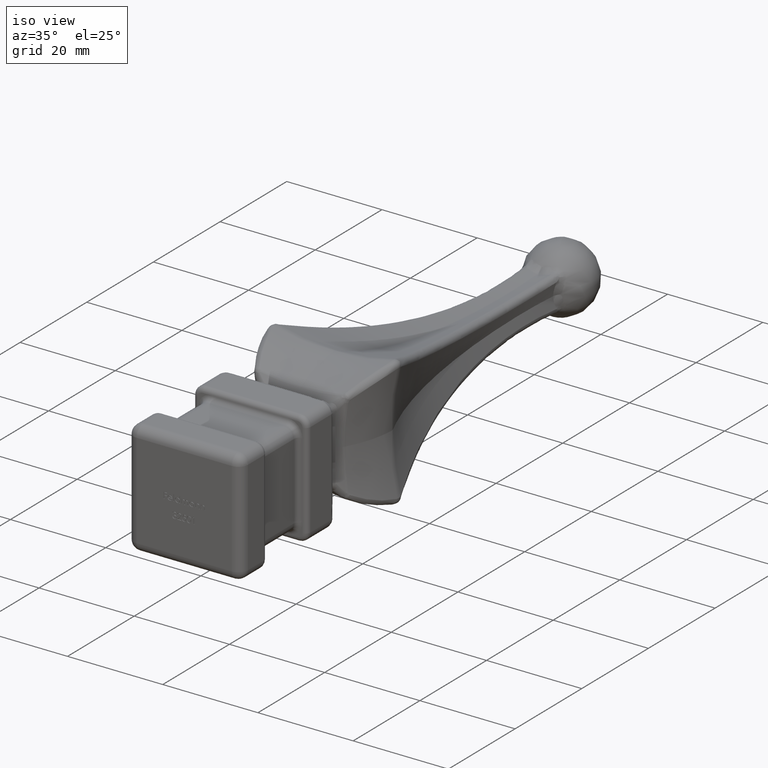
[diagram: clean part render]
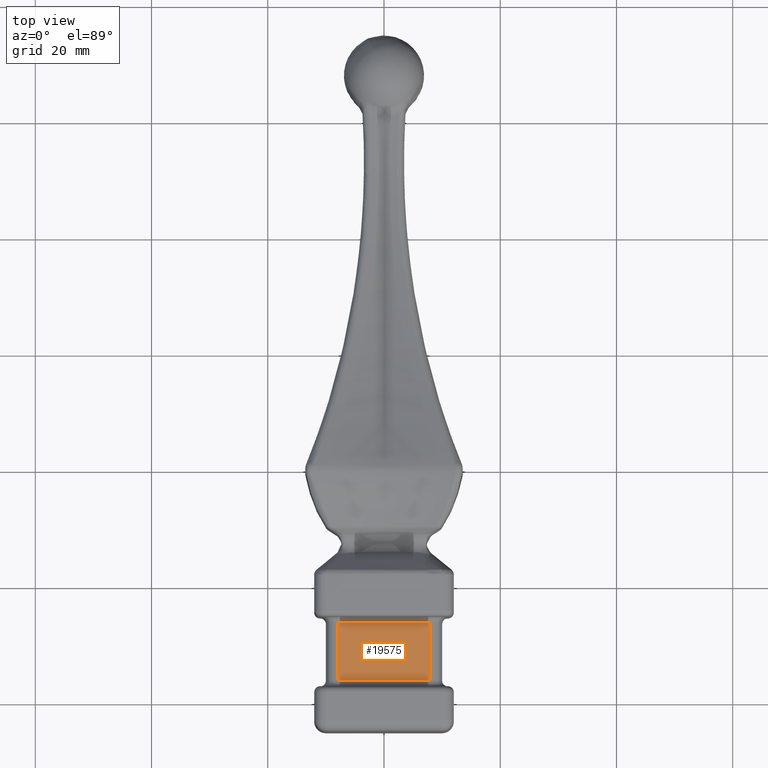
[diagram: tour spotlight — one face highlighted and labeled with its STEP entity id]
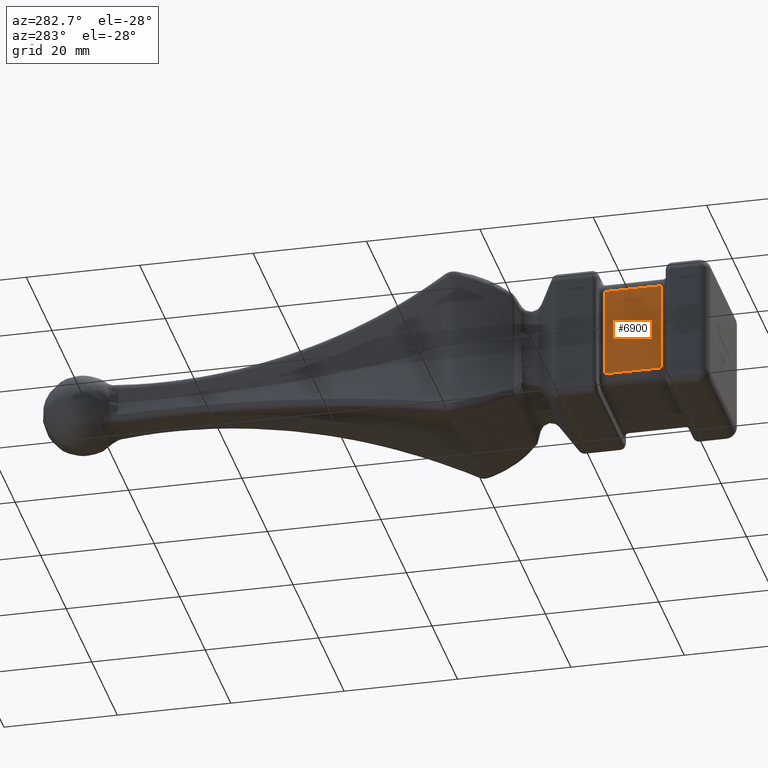
[diagram: tour spotlight — one face highlighted and labeled with its STEP entity id]
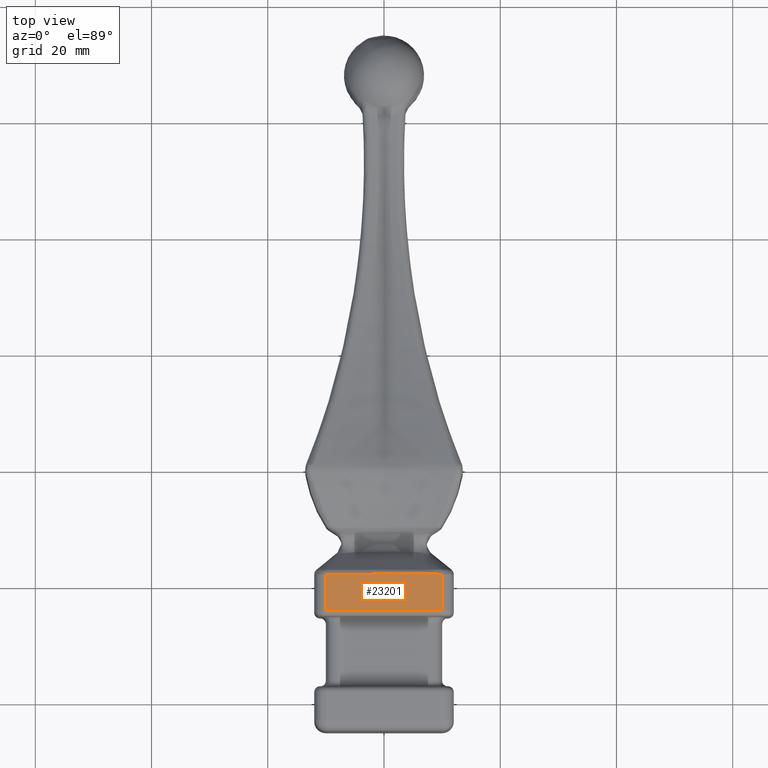
[diagram: tour spotlight — one face highlighted and labeled with its STEP entity id]
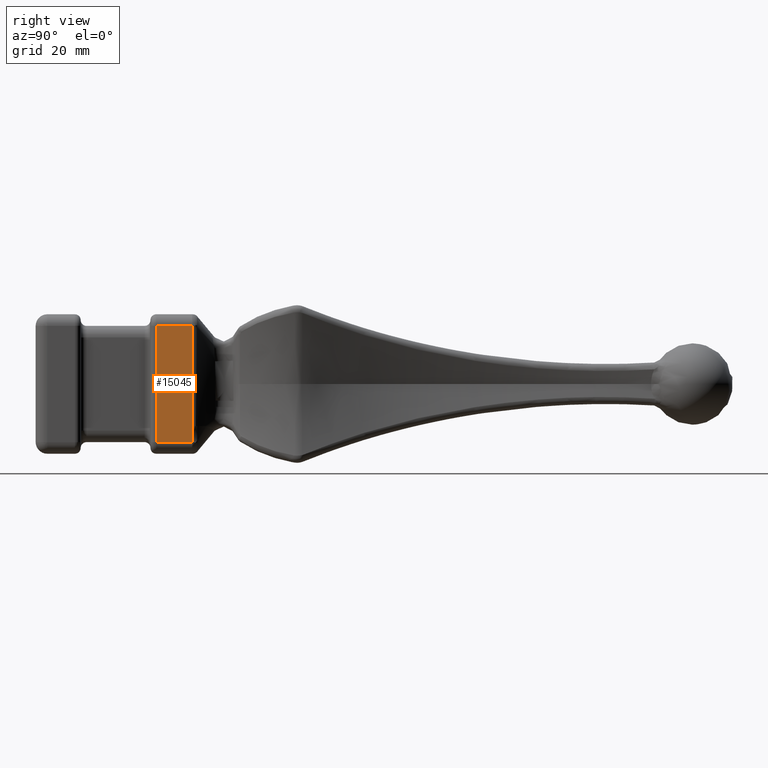
[diagram: tour spotlight — one face highlighted and labeled with its STEP entity id]
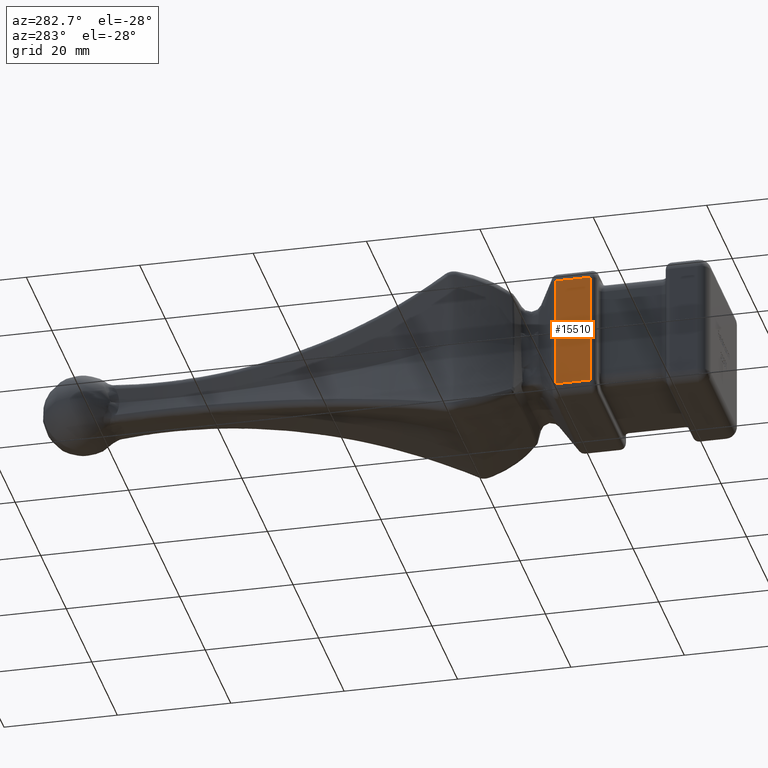
[diagram: tour spotlight — one face highlighted and labeled with its STEP entity id]
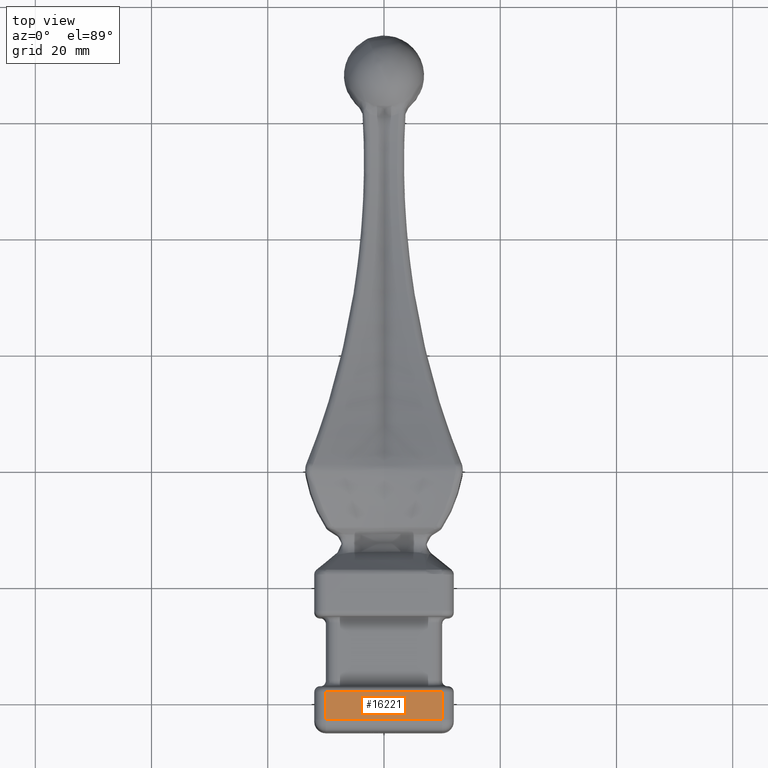
[diagram: tour spotlight — one face highlighted and labeled with its STEP entity id]
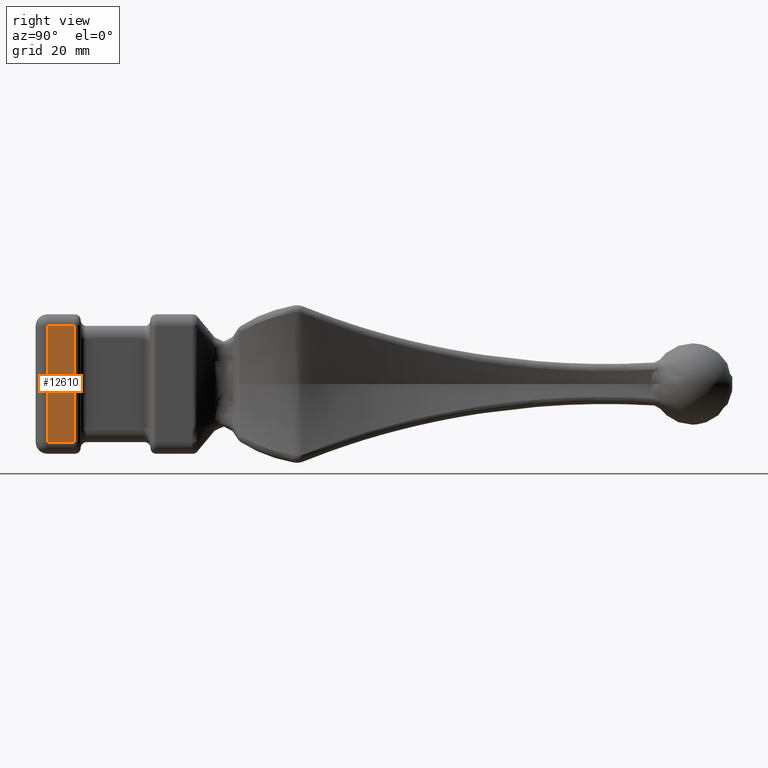
[diagram: tour spotlight — one face highlighted and labeled with its STEP entity id]
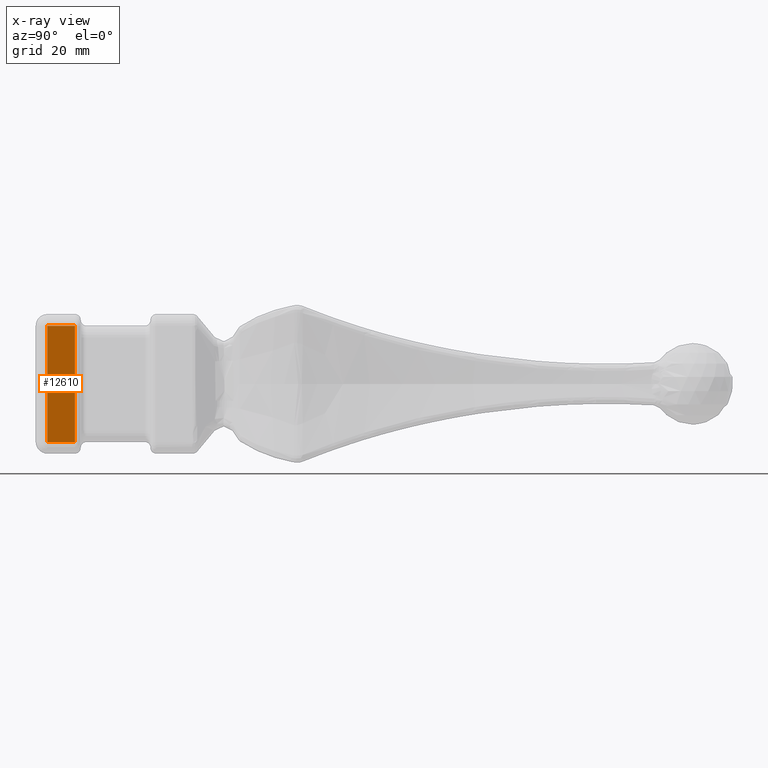
[diagram: x-ray of the same camera — body ghosted, this tour face saturated]
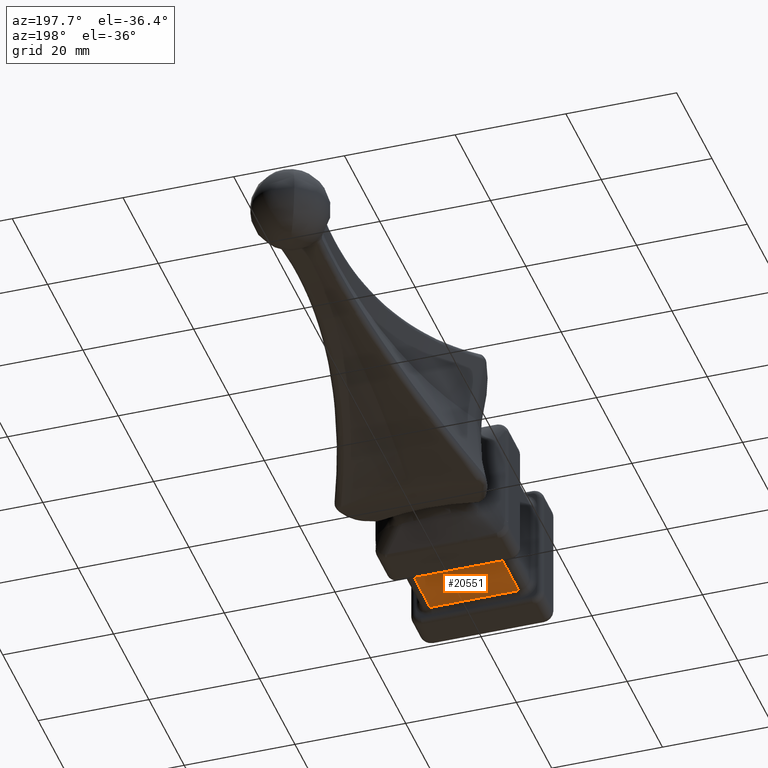
[diagram: tour spotlight — one face highlighted and labeled with its STEP entity id]
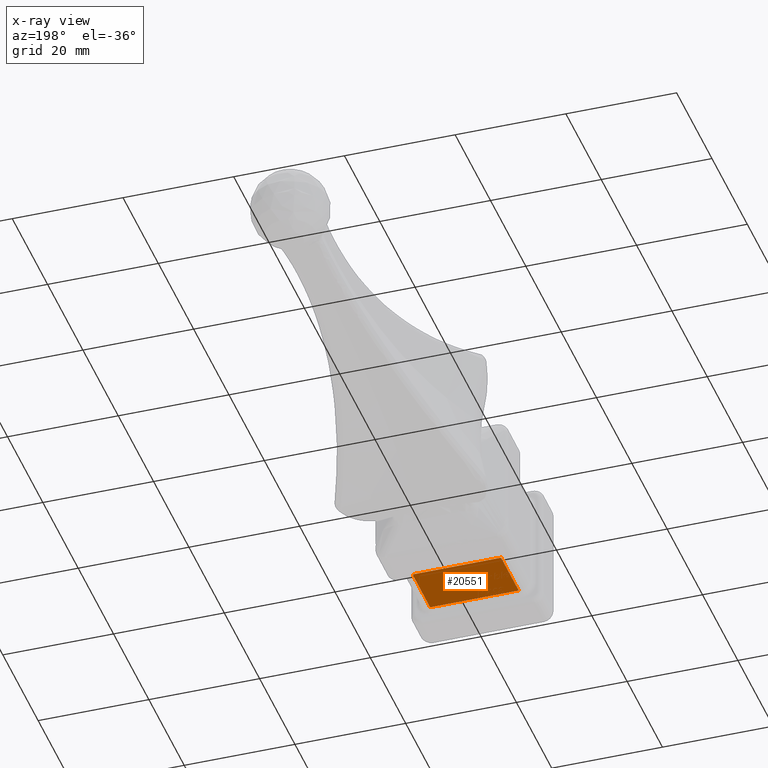
[diagram: x-ray of the same camera — body ghosted, this tour face saturated]
A machine part: a face-by-face anatomy tour. The part has 376 B-rep faces; the first image is the clean iso view, then the 8 largest visible faces are spotlighted one at a time (largest first), each with its STEP entity span.

Face 1 — top view, entity #19575. In plain terms, the highlighted planar face has unit normal (0, 0, 1).
Definition (entity closure, byte-faithful):
#49 = LINE ( 'NONE', #15468, #7970 ) ;
#422 = EDGE_LOOP ( 'NONE', ( #485, #13624, #6865, #5310 ) ) ;
#485 = ORIENTED_EDGE ( 'NONE', *, *, #8237, .T. ) ;
#515 = DIRECTION ( 'NONE',  ( 1.734723476001940696E-16, 1.445602896647337931E-16, 1.000000000000000000 ) ) ;
#641 = VERTEX_POINT ( 'NONE', #22807 ) ;
#955 = VECTOR ( 'NONE', #20763, 1000.000000000000000 ) ;
#2323 = DIRECTION ( 'NONE',  ( 1.000000000000000000, 0.000000000000000000, -1.734723476001940696E-16 ) ) ;
#5015 = CARTESIAN_POINT ( 'NONE',  ( 8.000000000000003553, -36.25000000000001421, 10.00000000000000178 ) ) ;
#5198 = LINE ( 'NONE', #22337, #18501 ) ;
#5310 = ORIENTED_EDGE ( 'NONE', *, *, #11343, .T. ) ;
#5799 = CARTESIAN_POINT ( 'NONE',  ( 8.000000000000005329, -36.25000000000000711, 10.00000000000000178 ) ) ;
#6808 = AXIS2_PLACEMENT_3D ( 'NONE', #20435, #515, #2323 ) ;
#6865 = ORIENTED_EDGE ( 'NONE', *, *, #14449, .T. ) ;
#7679 = VECTOR ( 'NONE', #12449, 1000.000000000000000 ) ;
#7970 = VECTOR ( 'NONE', #8524, 1000.000000000000000 ) ;
#8237 = EDGE_CURVE ( 'NONE', #641, #14520, #10614, .T. ) ;
#8524 = DIRECTION ( 'NONE',  ( -1.445602896647338177E-16, 1.000000000000000000, -1.445602896647337684E-16 ) ) ;
#10614 = LINE ( 'NONE', #13509, #955 ) ;
#11343 = EDGE_CURVE ( 'NONE', #13455, #641, #5198, .T. ) ;
#12449 = DIRECTION ( 'NONE',  ( 1.000000000000000000, 3.083952846180991267E-15, -1.734723476001945133E-16 ) ) ;
#12888 = CARTESIAN_POINT ( 'NONE',  ( 8.000000000000003553, -26.24999999999999645, 10.00000000000000000 ) ) ;
#13455 = VERTEX_POINT ( 'NONE', #12888 ) ;
#13509 = CARTESIAN_POINT ( 'NONE',  ( -8.000000000000000000, -25.24999999999999289, 10.00000000000000355 ) ) ;
#13624 = ORIENTED_EDGE ( 'NONE', *, *, #22063, .T. ) ;
#13857 = LINE ( 'NONE', #5015, #7679 ) ;
#13973 = CARTESIAN_POINT ( 'NONE',  ( -8.000000000000001776, -36.25000000000005684, 10.00000000000000533 ) ) ;
#14449 = EDGE_CURVE ( 'NONE', #22209, #13455, #49, .T. ) ;
#14520 = VERTEX_POINT ( 'NONE', #13973 ) ;
#15468 = CARTESIAN_POINT ( 'NONE',  ( 8.000000000000003553, -25.24999999999999289, 10.00000000000000000 ) ) ;
#16735 = FACE_OUTER_BOUND ( 'NONE', #422, .T. ) ;
#16785 = PLANE ( 'NONE',  #6808 ) ;
#18501 = VECTOR ( 'NONE', #22998, 1000.000000000000000 ) ;
#19575 = ADVANCED_FACE ( 'NONE', ( #16735 ), #16785, .T. ) ;
#20435 = CARTESIAN_POINT ( 'NONE',  ( -9.999999999938884443, -25.24999999999999289, 10.00000000000000355 ) ) ;
#20763 = DIRECTION ( 'NONE',  ( -1.445602896647337684E-16, -1.000000000000000000, 1.445602896647338177E-16 ) ) ;
#22063 = EDGE_CURVE ( 'NONE', #14520, #22209, #13857, .T. ) ;
#22209 = VERTEX_POINT ( 'NONE', #5799 ) ;
#22337 = CARTESIAN_POINT ( 'NONE',  ( -8.000000000000001776, -26.24999999999999645, 10.00000000000000355 ) ) ;
#22807 = CARTESIAN_POINT ( 'NONE',  ( -8.000000000000000000, -26.24999999999999645, 10.00000000000000355 ) ) ;
#22998 = DIRECTION ( 'NONE',  ( -1.000000000000000000, -0.000000000000000000, 1.734723476001940696E-16 ) ) ;

Face 2 — auxiliary view, entity #6900. In plain terms, the highlighted planar face has unit normal (-1, 0, 0).
Definition (entity closure, byte-faithful):
#60 = CARTESIAN_POINT ( 'NONE',  ( -10.00000000000000178, -36.25000000000006395, 8.000000000000005329 ) ) ;
#319 = VECTOR ( 'NONE', #5487, 1000.000000000000000 ) ;
#1748 = CARTESIAN_POINT ( 'NONE',  ( -10.00000000000000000, -25.24999999999999289, 8.000000000000001776 ) ) ;
#2362 = LINE ( 'NONE', #60, #2919 ) ;
#2818 = EDGE_LOOP ( 'NONE', ( #16619, #18652, #17520, #17953 ) ) ;
#2919 = VECTOR ( 'NONE', #14517, 1000.000000000000000 ) ;
#3091 = CARTESIAN_POINT ( 'NONE',  ( -10.00000000000000355, -26.24999999999999645, -8.000000000000000000 ) ) ;
#3664 = EDGE_CURVE ( 'NONE', #21092, #8711, #2362, .T. ) ;
#5487 = DIRECTION ( 'NONE',  ( 1.445602896647337684E-16, 1.000000000000000000, -1.445602896647338177E-16 ) ) ;
#6900 = ADVANCED_FACE ( 'NONE', ( #19964 ), #8122, .T. ) ;
#7386 = CARTESIAN_POINT ( 'NONE',  ( -10.00000000000000000, -26.24999999999999645, 8.000000000000001776 ) ) ;
#8122 = PLANE ( 'NONE',  #17884 ) ;
#8575 = VECTOR ( 'NONE', #18894, 1000.000000000000000 ) ;
#8711 = VERTEX_POINT ( 'NONE', #10028 ) ;
#9996 = EDGE_CURVE ( 'NONE', #10728, #21092, #11440, .T. ) ;
#10028 = CARTESIAN_POINT ( 'NONE',  ( -10.00000000000000178, -36.25000000000006395, 8.000000000000003553 ) ) ;
#10235 = LINE ( 'NONE', #3091, #17547 ) ;
#10728 = VERTEX_POINT ( 'NONE', #22208 ) ;
#11440 = LINE ( 'NONE', #12956, #8575 ) ;
#11936 = LINE ( 'NONE', #1748, #319 ) ;
#12956 = CARTESIAN_POINT ( 'NONE',  ( -10.00000000000000355, -25.24999999999999289, -8.000000000000000000 ) ) ;
#12966 = CARTESIAN_POINT ( 'NONE',  ( -10.00000000000000533, -36.25000000000006395, -8.000000000000001776 ) ) ;
#13006 = VERTEX_POINT ( 'NONE', #7386 ) ;
#13642 = DIRECTION ( 'NONE',  ( -1.000000000000000000, 1.445602896647337931E-16, 1.734723475976806848E-16 ) ) ;
#14085 = DIRECTION ( 'NONE',  ( -1.734723475976806848E-16, -0.000000000000000000, -1.000000000000000000 ) ) ;
#14140 = EDGE_CURVE ( 'NONE', #13006, #10728, #10235, .T. ) ;
#14517 = DIRECTION ( 'NONE',  ( 1.734723475976806848E-16, 2.094065392625398510E-43, 1.000000000000000000 ) ) ;
#16619 = ORIENTED_EDGE ( 'NONE', *, *, #9996, .T. ) ;
#17247 = DIRECTION ( 'NONE',  ( 1.734723475976806848E-16, 0.000000000000000000, 1.000000000000000000 ) ) ;
#17520 = ORIENTED_EDGE ( 'NONE', *, *, #19963, .T. ) ;
#17547 = VECTOR ( 'NONE', #14085, 1000.000000000000000 ) ;
#17884 = AXIS2_PLACEMENT_3D ( 'NONE', #22703, #13642, #17247 ) ;
#17953 = ORIENTED_EDGE ( 'NONE', *, *, #14140, .T. ) ;
#18652 = ORIENTED_EDGE ( 'NONE', *, *, #3664, .T. ) ;
#18894 = DIRECTION ( 'NONE',  ( -1.445602896647338177E-16, -1.000000000000000000, -1.445602896647337931E-16 ) ) ;
#19963 = EDGE_CURVE ( 'NONE', #8711, #13006, #11936, .T. ) ;
#19964 = FACE_OUTER_BOUND ( 'NONE', #2818, .T. ) ;
#21092 = VERTEX_POINT ( 'NONE', #12966 ) ;
#22208 = CARTESIAN_POINT ( 'NONE',  ( -10.00000000000000355, -26.24999999999999645, -8.000000000000000000 ) ) ;
#22703 = CARTESIAN_POINT ( 'NONE',  ( -10.00000000000000355, -25.24999999999999289, -10.00000000000000000 ) ) ;

Face 3 — top view, entity #23201. In plain terms, the highlighted planar face has unit normal (-0, 0, -1).
Definition (entity closure, byte-faithful):
#591 = DIRECTION ( 'NONE',  ( -0.000000000000000000, 1.000000000000000000, -0.000000000000000000 ) ) ;
#1500 = VECTOR ( 'NONE', #15273, 1000.000000000000000 ) ;
#1666 = CARTESIAN_POINT ( 'NONE',  ( -9.551533548502440851, -17.96837494598445062, 12.00000000000000711 ) ) ;
#2367 = LINE ( 'NONE', #2638, #1500 ) ;
#2638 = CARTESIAN_POINT ( 'NONE',  ( 9.999999999771342019, -24.24999999999999289, 12.00000000000000000 ) ) ;
#2841 = DIRECTION ( 'NONE',  ( -2.013517151551784753E-16, 0.000000000000000000, -1.000000000000000000 ) ) ;
#3006 = CARTESIAN_POINT ( 'NONE',  ( 7.230779232707671866, -45.00000000000000000, 12.00000000000000000 ) ) ;
#3137 = CARTESIAN_POINT ( 'NONE',  ( -9.820707168048386393, -17.97733999031993690, 11.99999999999998757 ) ) ;
#3206 = CARTESIAN_POINT ( 'NONE',  ( 9.077268948625556888, -17.96837494598445417, 11.99999999999999289 ) ) ;
#3530 = B_SPLINE_CURVE_WITH_KNOTS ( 'NONE', 3,
 ( #5475, #7297, #5316, #8885, #21504, #10711, #12512, #1666, #17946, #3137, #6777, #12170 ),
 .UNSPECIFIED., .F., .F.,
 ( 4, 1, 1, 1, 1, 2, 2, 4 ),
 ( 0.000000000000000000, 0.008615518860935849482, 0.01292327829140377249, 0.01507715800663773573, 0.01615409786425471908, 0.01669256779306321076, 0.01696180275746745486, 0.01723103772187170243 ),
 .UNSPECIFIED. ) ;
#4123 = EDGE_CURVE ( 'NONE', #10950, #8165, #3530, .T. ) ;
#4256 = B_SPLINE_CURVE_WITH_KNOTS ( 'NONE', 3,
 ( #19096, #4502, #22863, #8438, #19242, #3206, #22937, #4725, #22713 ),
 .UNSPECIFIED., .F., .F.,
 ( 4, 2, 2, 1, 4 ),
 ( 2.793120281609325416E-16, 0.0003461847073215051636, 0.0006923694146427310367, 0.001384738829285182783, 0.002769477658570091046 ),
 .UNSPECIFIED. ) ;
#4502 = CARTESIAN_POINT ( 'NONE',  ( 9.884878441371490965, -17.98524239671767333, 12.00000000000000000 ) ) ;
#4531 = AXIS2_PLACEMENT_3D ( 'NONE', #3006, #2841, #15486 ) ;
#4725 = CARTESIAN_POINT ( 'NONE',  ( 7.692401661678033520, -17.96837494598444707, 12.00000000000000000 ) ) ;
#4913 = ORIENTED_EDGE ( 'NONE', *, *, #20912, .T. ) ;
#5316 = CARTESIAN_POINT ( 'NONE',  ( 0.05118018191564238650, -17.96837494598445062, 12.00000000000000000 ) ) ;
#5475 = CARTESIAN_POINT ( 'NONE',  ( 7.230779232695522474, -17.96837494598443996, 12.00000000000000000 ) ) ;
#6054 = ORIENTED_EDGE ( 'NONE', *, *, #4123, .T. ) ;
#6777 = CARTESIAN_POINT ( 'NONE',  ( -9.910365693197915604, -17.98997584141890371, 12.00000000000000711 ) ) ;
#7297 = CARTESIAN_POINT ( 'NONE',  ( 4.358939612383574413, -17.96837494598444707, 12.00000000000000355 ) ) ;
#7479 = VECTOR ( 'NONE', #20328, 1000.000000000000000 ) ;
#7656 = FACE_OUTER_BOUND ( 'NONE', #23327, .T. ) ;
#8165 = VERTEX_POINT ( 'NONE', #16172 ) ;
#8438 = CARTESIAN_POINT ( 'NONE',  ( 9.538907069018501161, -17.96722297685958480, 11.99999999999997335 ) ) ;
#8885 = CARTESIAN_POINT ( 'NONE',  ( -4.974539153630265886, -17.96837494598444707, 12.00000000000000533 ) ) ;
#9463 = ORIENTED_EDGE ( 'NONE', *, *, #16623, .T. ) ;
#9762 = VECTOR ( 'NONE', #591, 1000.000000000000000 ) ;
#10605 = LINE ( 'NONE', #19812, #9762 ) ;
#10711 = CARTESIAN_POINT ( 'NONE',  ( -8.743828655289696883, -17.96837494598444351, 12.00000000000000178 ) ) ;
#10950 = VERTEX_POINT ( 'NONE', #13601 ) ;
#11184 = EDGE_CURVE ( 'NONE', #12075, #8165, #20462, .T. ) ;
#11349 = VERTEX_POINT ( 'NONE', #11573 ) ;
#11573 = CARTESIAN_POINT ( 'NONE',  ( 9.999999999771343795, -18.00609555727877620, 12.00000000000000000 ) ) ;
#12075 = VERTEX_POINT ( 'NONE', #16665 ) ;
#12170 = CARTESIAN_POINT ( 'NONE',  ( -9.999999999938884443, -18.00615101289839259, 12.00000000000000355 ) ) ;
#12512 = CARTESIAN_POINT ( 'NONE',  ( -9.282298584098196415, -17.96837494598444351, 12.00000000000000355 ) ) ;
#13601 = CARTESIAN_POINT ( 'NONE',  ( 7.230779232695522474, -17.96837494598443996, 12.00000000000000000 ) ) ;
#15273 = DIRECTION ( 'NONE',  ( 1.000000000000000000, -0.000000000000000000, -2.013517151551784753E-16 ) ) ;
#15486 = DIRECTION ( 'NONE',  ( -1.000000000000000000, 0.000000000000000000, 2.013517151551784753E-16 ) ) ;
#16172 = CARTESIAN_POINT ( 'NONE',  ( -9.999999999938884443, -18.00615101289839259, 12.00000000000000355 ) ) ;
#16463 = VERTEX_POINT ( 'NONE', #20776 ) ;
#16623 = EDGE_CURVE ( 'NONE', #16463, #11349, #10605, .T. ) ;
#16664 = CARTESIAN_POINT ( 'NONE',  ( -9.999999999938884443, -45.00000000000000000, 12.00000000000000355 ) ) ;
#16665 = CARTESIAN_POINT ( 'NONE',  ( -9.999999999938884443, -24.24999999999999289, 12.00000000000000355 ) ) ;
#17645 = EDGE_CURVE ( 'NONE', #12075, #16463, #2367, .T. ) ;
#17946 = CARTESIAN_POINT ( 'NONE',  ( -9.641298183457974957, -17.96550372541099350, 11.99999999999998757 ) ) ;
#19037 = ORIENTED_EDGE ( 'NONE', *, *, #11184, .F. ) ;
#19096 = CARTESIAN_POINT ( 'NONE',  ( 9.999999999771343795, -18.00609555727877620, 12.00000000000000000 ) ) ;
#19242 = CARTESIAN_POINT ( 'NONE',  ( 9.423485770362439951, -17.96837494598445062, 11.99999999999999289 ) ) ;
#19812 = CARTESIAN_POINT ( 'NONE',  ( 9.999999999771343795, -45.00000000000000000, 12.00000000000000000 ) ) ;
#20328 = DIRECTION ( 'NONE',  ( -0.000000000000000000, 1.000000000000000000, -0.000000000000000000 ) ) ;
#20462 = LINE ( 'NONE', #16664, #7479 ) ;
#20776 = CARTESIAN_POINT ( 'NONE',  ( 9.999999999771343795, -24.24999999999999289, 12.00000000000000000 ) ) ;
#20872 = PLANE ( 'NONE',  #4531 ) ;
#20912 = EDGE_CURVE ( 'NONE', #11349, #10950, #4256, .T. ) ;
#21504 = CARTESIAN_POINT ( 'NONE',  ( -7.487398821403233207, -17.96837494598443641, 11.99999999999999822 ) ) ;
#21993 = ORIENTED_EDGE ( 'NONE', *, *, #17645, .T. ) ;
#22713 = CARTESIAN_POINT ( 'NONE',  ( 7.230779232695522474, -17.96837494598443996, 12.00000000000000000 ) ) ;
#22863 = CARTESIAN_POINT ( 'NONE',  ( 9.769684847507605241, -17.96967764735419593, 11.99999999999997158 ) ) ;
#22937 = CARTESIAN_POINT ( 'NONE',  ( 8.384835305151806750, -17.96837494598441154, 11.99999999999999112 ) ) ;
#23201 = ADVANCED_FACE ( 'NONE', ( #7656 ), #20872, .F. ) ;
#23327 = EDGE_LOOP ( 'NONE', ( #19037, #21993, #9463, #4913, #6054 ) ) ;

Face 4 — right view, entity #15045. In plain terms, the highlighted planar face has unit normal (-1, 0, 0).
Definition (entity closure, byte-faithful):
#471 = CARTESIAN_POINT ( 'NONE',  ( 12.00000000000000178, -17.98521045742030466, -9.884878785901538123 ) ) ;
#923 = VECTOR ( 'NONE', #1552, 1000.000000000000000 ) ;
#1484 = CARTESIAN_POINT ( 'NONE',  ( 12.00000000000000355, -45.00000000000000000, 9.999999999987204902 ) ) ;
#1552 = DIRECTION ( 'NONE',  ( -2.013516885467207503E-16, 0.000000000000000000, -1.000000000000000000 ) ) ;
#2510 = CARTESIAN_POINT ( 'NONE',  ( 12.00000000000000711, -17.96837494598443286, 4.974498972118418294 ) ) ;
#3429 = CARTESIAN_POINT ( 'NONE',  ( 12.00000000000000000, -17.96837494598443641, 9.551479152797506700 ) ) ;
#3474 = VERTEX_POINT ( 'NONE', #5117 ) ;
#4988 = VERTEX_POINT ( 'NONE', #18001 ) ;
#5013 = CARTESIAN_POINT ( 'NONE',  ( 12.00000000000000533, -17.99020673238607770, 9.910342399647191769 ) ) ;
#5117 = CARTESIAN_POINT ( 'NONE',  ( 12.00000000000000355, -18.00665913262939455, 9.999999999987204902 ) ) ;
#5436 = VECTOR ( 'NONE', #18990, 1000.000000000000000 ) ;
#5555 = AXIS2_PLACEMENT_3D ( 'NONE', #9547, #7393, #11299 ) ;
#5983 = ORIENTED_EDGE ( 'NONE', *, *, #19821, .T. ) ;
#6162 = B_SPLINE_CURVE_WITH_KNOTS ( 'NONE', 3,
 ( #9734, #18803, #16891, #2510, #16958, #22910, #13928, #3429, #8567, #17712, #5013, #15803 ),
 .UNSPECIFIED., .F., .F.,
 ( 4, 1, 1, 1, 1, 2, 2, 4 ),
 ( 0.000000000000000000, 0.008615492104807677062, 0.01292323815721151473, 0.01507711118341343443, 0.01615404769651439254, 0.01669251595306487507, 0.01696175008134011633, 0.01723098420961535759 ),
 .UNSPECIFIED. ) ;
#7393 = DIRECTION ( 'NONE',  ( -1.000000000000000000, 0.000000000000000000, 2.013516885467207503E-16 ) ) ;
#7442 = DIRECTION ( 'NONE',  ( -0.000000000000000000, 1.000000000000000000, -0.000000000000000000 ) ) ;
#7906 = CARTESIAN_POINT ( 'NONE',  ( 12.00000000000001599, -17.96837494598445062, -9.077269539527568654 ) ) ;
#8539 = LINE ( 'NONE', #14535, #11119 ) ;
#8567 = CARTESIAN_POINT ( 'NONE',  ( 11.99999999999999645, -17.96567348910116380, 9.641238165390152659 ) ) ;
#9547 = CARTESIAN_POINT ( 'NONE',  ( 12.00000000000000000, -45.00000000000000000, -7.230781509692458364 ) ) ;
#9734 = CARTESIAN_POINT ( 'NONE',  ( 12.00000000000000000, -17.96837494598444351, -7.230781509692460141 ) ) ;
#9737 = CARTESIAN_POINT ( 'NONE',  ( 11.99999999999998934, -17.96837494598445417, -8.384836528339429051 ) ) ;
#9894 = CARTESIAN_POINT ( 'NONE',  ( 12.00000000000001599, -17.96837494598445062, -9.423486045121654442 ) ) ;
#10041 = CARTESIAN_POINT ( 'NONE',  ( 11.99999999999999645, -17.96720403837487012, -9.538907492453793324 ) ) ;
#10305 = ORIENTED_EDGE ( 'NONE', *, *, #11340, .T. ) ;
#10552 = EDGE_LOOP ( 'NONE', ( #14850, #11441, #5983, #13404, #19416, #10305 ) ) ;
#10983 = PLANE ( 'NONE',  #5555 ) ;
#11119 = VECTOR ( 'NONE', #21733, 1000.000000000000000 ) ;
#11137 = EDGE_CURVE ( 'NONE', #15466, #3474, #16201, .T. ) ;
#11299 = DIRECTION ( 'NONE',  ( 2.013516885467207503E-16, 0.000000000000000000, 1.000000000000000000 ) ) ;
#11340 = EDGE_CURVE ( 'NONE', #4988, #3474, #6162, .T. ) ;
#11441 = ORIENTED_EDGE ( 'NONE', *, *, #17768, .T. ) ;
#11647 = CARTESIAN_POINT ( 'NONE',  ( 12.00000000000000000, -17.96837494598444351, -7.230781509692460141 ) ) ;
#12063 = CARTESIAN_POINT ( 'NONE',  ( 12.00000000000000178, -24.24999999999999289, -2.013516885467204791E-16 ) ) ;
#12121 = EDGE_CURVE ( 'NONE', #13482, #4988, #12818, .T. ) ;
#12402 = CARTESIAN_POINT ( 'NONE',  ( 12.00000000000000178, -24.24999999999999289, -3.049763408165360261E-31 ) ) ;
#12809 = VERTEX_POINT ( 'NONE', #12063 ) ;
#12818 = B_SPLINE_CURVE_WITH_KNOTS ( 'NONE', 3,
 ( #14768, #471, #20686, #10041, #9894, #7906, #9737, #16959, #11647 ),
 .UNSPECIFIED., .F., .F.,
 ( 4, 2, 2, 1, 4 ),
 ( 3.278810933079294636E-16, 0.0003461844069548649662, 0.0006923688139094020698, 0.001384737627818481481, 0.002769475255636635099 ),
 .UNSPECIFIED. ) ;
#13404 = ORIENTED_EDGE ( 'NONE', *, *, #20613, .T. ) ;
#13482 = VERTEX_POINT ( 'NONE', #14828 ) ;
#13928 = CARTESIAN_POINT ( 'NONE',  ( 11.99999999999999645, -17.96837494598443641, 9.282245024522266519 ) ) ;
#14535 = CARTESIAN_POINT ( 'NONE',  ( 12.00000000000000178, -45.00000000000000000, -10.00000000002062350 ) ) ;
#14768 = CARTESIAN_POINT ( 'NONE',  ( 12.00000000000000178, -18.00608627597991429, -10.00000000002062350 ) ) ;
#14828 = CARTESIAN_POINT ( 'NONE',  ( 12.00000000000000178, -18.00608627597991429, -10.00000000002062350 ) ) ;
#14850 = ORIENTED_EDGE ( 'NONE', *, *, #11137, .F. ) ;
#15045 = ADVANCED_FACE ( 'NONE', ( #16546 ), #10983, .F. ) ;
#15466 = VERTEX_POINT ( 'NONE', #19542 ) ;
#15619 = VECTOR ( 'NONE', #7442, 1000.000000000000000 ) ;
#15803 = CARTESIAN_POINT ( 'NONE',  ( 12.00000000000000355, -18.00665913262939455, 9.999999999987204902 ) ) ;
#16156 = LINE ( 'NONE', #17166, #5436 ) ;
#16201 = LINE ( 'NONE', #1484, #15619 ) ;
#16546 = FACE_OUTER_BOUND ( 'NONE', #10552, .T. ) ;
#16891 = CARTESIAN_POINT ( 'NONE',  ( 12.00000000000000000, -17.96837494598442930, -0.05120475568605929034 ) ) ;
#16958 = CARTESIAN_POINT ( 'NONE',  ( 12.00000000000000711, -17.96837494598445062, 7.487350836020647549 ) ) ;
#16959 = CARTESIAN_POINT ( 'NONE',  ( 11.99999999999999822, -17.96837494598443286, -7.692403517151243264 ) ) ;
#17166 = CARTESIAN_POINT ( 'NONE',  ( 12.00000000000000000, -24.24999999999999289, -10.00000000002062173 ) ) ;
#17712 = CARTESIAN_POINT ( 'NONE',  ( 11.99999999999999645, -17.97667293170634650, 9.820669346453273718 ) ) ;
#17768 = EDGE_CURVE ( 'NONE', #15466, #12809, #18205, .T. ) ;
#18001 = CARTESIAN_POINT ( 'NONE',  ( 12.00000000000000000, -17.96837494598444351, -7.230781509692460141 ) ) ;
#18205 = LINE ( 'NONE', #12402, #923 ) ;
#18803 = CARTESIAN_POINT ( 'NONE',  ( 12.00000000000000355, -17.96837494598447549, -4.358950808089902651 ) ) ;
#18906 = CARTESIAN_POINT ( 'NONE',  ( 12.00000000000000178, -24.24999999999999289, -10.00000000002062350 ) ) ;
#18990 = DIRECTION ( 'NONE',  ( -2.013516885467207503E-16, 0.000000000000000000, -1.000000000000000000 ) ) ;
#19416 = ORIENTED_EDGE ( 'NONE', *, *, #12121, .T. ) ;
#19467 = VERTEX_POINT ( 'NONE', #18906 ) ;
#19542 = CARTESIAN_POINT ( 'NONE',  ( 12.00000000000000355, -24.24999999999999289, 9.999999999987204902 ) ) ;
#19821 = EDGE_CURVE ( 'NONE', #12809, #19467, #16156, .T. ) ;
#20613 = EDGE_CURVE ( 'NONE', #19467, #13482, #8539, .T. ) ;
#20686 = CARTESIAN_POINT ( 'NONE',  ( 11.99999999999999645, -17.96969925473830187, -9.769684516225293436 ) ) ;
#21733 = DIRECTION ( 'NONE',  ( -0.000000000000000000, 1.000000000000000000, -0.000000000000000000 ) ) ;
#22910 = CARTESIAN_POINT ( 'NONE',  ( 12.00000000000000711, -17.96837494598444351, 8.743776767971779051 ) ) ;

Face 5 — auxiliary view, entity #15510. In plain terms, the highlighted planar face has unit normal (1, 0, -0).
Definition (entity closure, byte-faithful):
#1142 = VECTOR ( 'NONE', #21448, 1000.000000000000000 ) ;
#1148 = ORIENTED_EDGE ( 'NONE', *, *, #9915, .T. ) ;
#1592 = CARTESIAN_POINT ( 'NONE',  ( -12.00000000000000888, -17.96837494598446483, -6.017693308888620862 ) ) ;
#3101 = CARTESIAN_POINT ( 'NONE',  ( -12.00000000000000355, -18.09166895303818734, -9.999999999999998224 ) ) ;
#3192 = VECTOR ( 'NONE', #8140, 1000.000000000000000 ) ;
#3274 = DIRECTION ( 'NONE',  ( -1.734723475976806848E-16, 0.000000000000000000, -1.000000000000000000 ) ) ;
#3341 = CARTESIAN_POINT ( 'NONE',  ( -12.00000000000000000, -18.00733723455507374, 10.00000000000000355 ) ) ;
#3418 = CARTESIAN_POINT ( 'NONE',  ( -12.00000000000000355, -17.96837494598431917, -9.221345693182168901 ) ) ;
#4054 = EDGE_CURVE ( 'NONE', #16849, #15463, #8829, .T. ) ;
#5002 = CARTESIAN_POINT ( 'NONE',  ( -11.99999999999997513, -17.96537727147151742, 9.600155812358439178 ) ) ;
#5034 = CARTESIAN_POINT ( 'NONE',  ( -12.00000000000000000, -45.00000000000000000, 10.00000000000000355 ) ) ;
#5979 = LINE ( 'NONE', #19633, #1142 ) ;
#6389 = VERTEX_POINT ( 'NONE', #18893 ) ;
#6818 = CARTESIAN_POINT ( 'NONE',  ( -12.00000000000000355, -17.97853769020692738, -9.352608140942749060 ) ) ;
#6910 = PLANE ( 'NONE',  #11499 ) ;
#6978 = CARTESIAN_POINT ( 'NONE',  ( -11.99999999999997513, -17.97372742327007344, 9.800262224919292109 ) ) ;
#7456 = LINE ( 'NONE', #11576, #3192 ) ;
#7719 = ORIENTED_EDGE ( 'NONE', *, *, #4054, .T. ) ;
#8140 = DIRECTION ( 'NONE',  ( 1.734723475976806848E-16, -0.000000000000000000, 1.000000000000000000 ) ) ;
#8191 = CARTESIAN_POINT ( 'NONE',  ( -12.00000000000000000, -18.00733723455507374, 10.00000000000000355 ) ) ;
#8644 = CARTESIAN_POINT ( 'NONE',  ( -11.99999999999999467, -17.96837494598442930, 8.598970694441669949 ) ) ;
#8829 = B_SPLINE_CURVE_WITH_KNOTS ( 'NONE', 3,
 ( #3341, #17782, #6978, #5002, #19614, #13917, #8644, #21262, #10634, #10463, #1592, #3418 ),
 .UNSPECIFIED., .F., .F.,
 ( 4, 2, 2, 1, 1, 1, 1, 4 ),
 ( 0.000000000000000000, 0.0003003104322912359867, 0.0006006208645824719734, 0.001201241729164949151, 0.002402483458329903940, 0.004804966916659807880, 0.009609933833319610555, 0.01921986766663921764 ),
 .UNSPECIFIED. ) ;
#9280 = VERTEX_POINT ( 'NONE', #21030 ) ;
#9915 = EDGE_CURVE ( 'NONE', #6389, #16849, #22694, .T. ) ;
#10011 = CARTESIAN_POINT ( 'NONE',  ( -12.00000000000000355, -17.96837494598431917, -9.221345693182168901 ) ) ;
#10096 = ORIENTED_EDGE ( 'NONE', *, *, #12706, .T. ) ;
#10463 = CARTESIAN_POINT ( 'NONE',  ( -11.99999999999999112, -17.96837494598442575, -1.212214732451263322 ) ) ;
#10634 = CARTESIAN_POINT ( 'NONE',  ( -11.99999999999997691, -17.96837494598442930, 4.394176940058999392 ) ) ;
#11499 = AXIS2_PLACEMENT_3D ( 'NONE', #12143, #17397, #3274 ) ;
#11576 = CARTESIAN_POINT ( 'NONE',  ( -12.00000000000000000, -24.24999999999999289, 10.00000000000000355 ) ) ;
#12143 = CARTESIAN_POINT ( 'NONE',  ( -12.00000000000000000, -45.00000000000000000, 10.00000000000000355 ) ) ;
#12217 = EDGE_CURVE ( 'NONE', #9280, #6389, #7456, .T. ) ;
#12706 = EDGE_CURVE ( 'NONE', #15463, #21650, #15618, .T. ) ;
#13716 = FACE_OUTER_BOUND ( 'NONE', #19465, .T. ) ;
#13917 = CARTESIAN_POINT ( 'NONE',  ( -12.00000000000000533, -17.96837494598441509, 9.199655516496353158 ) ) ;
#13929 = CARTESIAN_POINT ( 'NONE',  ( -12.00000000000000711, -17.99840393655262361, -9.482530317668254938 ) ) ;
#13934 = CARTESIAN_POINT ( 'NONE',  ( -12.00000000000000355, -17.96837494598431917, -9.221345693182168901 ) ) ;
#15463 = VERTEX_POINT ( 'NONE', #13934 ) ;
#15510 = ADVANCED_FACE ( 'NONE', ( #13716 ), #6910, .F. ) ;
#15618 = B_SPLINE_CURVE_WITH_KNOTS ( 'NONE', 3,
 ( #10011, #6818, #13929, #17543, #19538, #3101 ),
 .UNSPECIFIED., .F., .F.,
 ( 4, 2, 4 ),
 ( 0.000000000000000000, 0.0003949654105060574748, 0.0007899308210121149497 ),
 .UNSPECIFIED. ) ;
#16392 = DIRECTION ( 'NONE',  ( -0.000000000000000000, 1.000000000000000000, -0.000000000000000000 ) ) ;
#16849 = VERTEX_POINT ( 'NONE', #8191 ) ;
#17397 = DIRECTION ( 'NONE',  ( 1.000000000000000000, 0.000000000000000000, -1.734723475976806848E-16 ) ) ;
#17543 = CARTESIAN_POINT ( 'NONE',  ( -12.00000000000000533, -18.04120142466447874, -9.741888798574130703 ) ) ;
#17782 = CARTESIAN_POINT ( 'NONE',  ( -11.99999999999999822, -17.98909295194411229, 9.900152118613691599 ) ) ;
#18704 = ORIENTED_EDGE ( 'NONE', *, *, #12217, .T. ) ;
#18893 = CARTESIAN_POINT ( 'NONE',  ( -12.00000000000000000, -24.24999999999999289, 10.00000000000000355 ) ) ;
#19465 = EDGE_LOOP ( 'NONE', ( #21602, #18704, #1148, #7719, #10096 ) ) ;
#19538 = CARTESIAN_POINT ( 'NONE',  ( -12.00000000000000533, -18.06551523347997801, -9.871143303759057019 ) ) ;
#19614 = CARTESIAN_POINT ( 'NONE',  ( -12.00000000000000888, -17.96837494598440443, 9.499997927523688546 ) ) ;
#19633 = CARTESIAN_POINT ( 'NONE',  ( -12.00000000000000355, -45.00000000000000000, -9.999999999999998224 ) ) ;
#20568 = CARTESIAN_POINT ( 'NONE',  ( -12.00000000000000355, -18.09166895303818734, -9.999999999999998224 ) ) ;
#21030 = CARTESIAN_POINT ( 'NONE',  ( -12.00000000000000355, -24.24999999999999289, -9.999999999999998224 ) ) ;
#21262 = CARTESIAN_POINT ( 'NONE',  ( -12.00000000000003020, -17.96837494598446838, 7.197372776314105103 ) ) ;
#21306 = VECTOR ( 'NONE', #16392, 1000.000000000000000 ) ;
#21441 = EDGE_CURVE ( 'NONE', #9280, #21650, #5979, .T. ) ;
#21448 = DIRECTION ( 'NONE',  ( -0.000000000000000000, 1.000000000000000000, -0.000000000000000000 ) ) ;
#21602 = ORIENTED_EDGE ( 'NONE', *, *, #21441, .F. ) ;
#21650 = VERTEX_POINT ( 'NONE', #20568 ) ;
#22694 = LINE ( 'NONE', #5034, #21306 ) ;

Face 6 — top view, entity #16221. In plain terms, the highlighted planar face has unit normal (-0, 0, -1).
Definition (entity closure, byte-faithful):
#1115 = CARTESIAN_POINT ( 'NONE',  ( -9.999999999938884443, -45.00000000000000000, 12.00000000000000355 ) ) ;
#1728 = LINE ( 'NONE', #5063, #5411 ) ;
#2010 = DIRECTION ( 'NONE',  ( 1.000000000000000000, -0.000000000000000000, -2.013517151551784753E-16 ) ) ;
#2429 = EDGE_CURVE ( 'NONE', #15585, #11416, #9778, .T. ) ;
#2564 = ORIENTED_EDGE ( 'NONE', *, *, #21259, .F. ) ;
#3542 = FACE_OUTER_BOUND ( 'NONE', #13766, .T. ) ;
#3827 = CARTESIAN_POINT ( 'NONE',  ( 7.230779232707671866, -45.00000000000000000, 12.00000000000000000 ) ) ;
#3906 = AXIS2_PLACEMENT_3D ( 'NONE', #3827, #16667, #21898 ) ;
#5063 = CARTESIAN_POINT ( 'NONE',  ( 9.999999999771343795, -45.00000000000000000, 12.00000000000000000 ) ) ;
#5411 = VECTOR ( 'NONE', #21098, 1000.000000000000000 ) ;
#7383 = CARTESIAN_POINT ( 'NONE',  ( 9.999999999771343795, -43.00000000000000000, 12.00000000000000000 ) ) ;
#9387 = VECTOR ( 'NONE', #14019, 1000.000000000000000 ) ;
#9778 = LINE ( 'NONE', #18879, #11766 ) ;
#11416 = VERTEX_POINT ( 'NONE', #19627 ) ;
#11766 = VECTOR ( 'NONE', #13515, 1000.000000000000000 ) ;
#11976 = ORIENTED_EDGE ( 'NONE', *, *, #13889, .T. ) ;
#12207 = ORIENTED_EDGE ( 'NONE', *, *, #21752, .T. ) ;
#13515 = DIRECTION ( 'NONE',  ( -1.000000000000000000, -3.083952846180991267E-15, 2.013517151551784753E-16 ) ) ;
#13766 = EDGE_LOOP ( 'NONE', ( #12207, #14797, #2564, #11976 ) ) ;
#13889 = EDGE_CURVE ( 'NONE', #17136, #18198, #17572, .T. ) ;
#14019 = DIRECTION ( 'NONE',  ( -0.000000000000000000, 1.000000000000000000, -0.000000000000000000 ) ) ;
#14630 = PLANE ( 'NONE',  #3906 ) ;
#14797 = ORIENTED_EDGE ( 'NONE', *, *, #2429, .T. ) ;
#14961 = CARTESIAN_POINT ( 'NONE',  ( 9.999999999771343795, -43.00000000000000000, 12.00000000000000000 ) ) ;
#15585 = VERTEX_POINT ( 'NONE', #20958 ) ;
#15866 = VECTOR ( 'NONE', #2010, 1000.000000000000000 ) ;
#16220 = CARTESIAN_POINT ( 'NONE',  ( -9.999999999938884443, -43.00000000000000000, 12.00000000000000355 ) ) ;
#16221 = ADVANCED_FACE ( 'NONE', ( #3542 ), #14630, .F. ) ;
#16667 = DIRECTION ( 'NONE',  ( -2.013517151551784753E-16, 0.000000000000000000, -1.000000000000000000 ) ) ;
#17136 = VERTEX_POINT ( 'NONE', #16220 ) ;
#17572 = LINE ( 'NONE', #14961, #15866 ) ;
#18198 = VERTEX_POINT ( 'NONE', #7383 ) ;
#18879 = CARTESIAN_POINT ( 'NONE',  ( -9.999999999938880890, -38.25000000000007105, 12.00000000000000355 ) ) ;
#19627 = CARTESIAN_POINT ( 'NONE',  ( -9.999999999938884443, -38.25000000000007105, 12.00000000000000355 ) ) ;
#20661 = LINE ( 'NONE', #1115, #9387 ) ;
#20958 = CARTESIAN_POINT ( 'NONE',  ( 9.999999999771343795, -38.25000000000000711, 12.00000000000000000 ) ) ;
#21098 = DIRECTION ( 'NONE',  ( -0.000000000000000000, 1.000000000000000000, -0.000000000000000000 ) ) ;
#21259 = EDGE_CURVE ( 'NONE', #17136, #11416, #20661, .T. ) ;
#21752 = EDGE_CURVE ( 'NONE', #18198, #15585, #1728, .T. ) ;
#21898 = DIRECTION ( 'NONE',  ( -1.000000000000000000, 0.000000000000000000, 2.013517151551784753E-16 ) ) ;

Face 7 — right view, entity #12610. An x-ray twin of the same camera follows (body ghosted, this face saturated) — the face is partly hidden behind the body. In plain terms, the highlighted planar face has unit normal (-1, 0, 0).
Definition (entity closure, byte-faithful):
#402 = EDGE_CURVE ( 'NONE', #5027, #18731, #5854, .T. ) ;
#607 = VECTOR ( 'NONE', #5762, 1000.000000000000000 ) ;
#1793 = VECTOR ( 'NONE', #21179, 1000.000000000000000 ) ;
#1881 = CARTESIAN_POINT ( 'NONE',  ( 12.00000000000000355, -43.00000000000000000, 9.999999999987204902 ) ) ;
#4018 = EDGE_CURVE ( 'NONE', #18624, #5807, #9477, .T. ) ;
#4828 = EDGE_CURVE ( 'NONE', #5807, #12837, #15343, .T. ) ;
#4937 = EDGE_CURVE ( 'NONE', #5027, #18624, #8020, .T. ) ;
#5027 = VERTEX_POINT ( 'NONE', #1881 ) ;
#5762 = DIRECTION ( 'NONE',  ( 2.013516885467207503E-16, 8.597857286965178496E-32, 1.000000000000000000 ) ) ;
#5789 = CARTESIAN_POINT ( 'NONE',  ( 12.00000000000000178, -38.25000000000000711, -10.00000000002062350 ) ) ;
#5807 = VERTEX_POINT ( 'NONE', #5789 ) ;
#5854 = LINE ( 'NONE', #12412, #15145 ) ;
#8020 = LINE ( 'NONE', #23281, #21574 ) ;
#8032 = CARTESIAN_POINT ( 'NONE',  ( 12.00000000000000000, -45.00000000000000000, -7.230781509692458364 ) ) ;
#8220 = CARTESIAN_POINT ( 'NONE',  ( 12.00000000000000178, -38.25000000000000711, -2.013516885467208242E-16 ) ) ;
#9095 = DIRECTION ( 'NONE',  ( -0.000000000000000000, 1.000000000000000000, -0.000000000000000000 ) ) ;
#9477 = LINE ( 'NONE', #21352, #1793 ) ;
#11530 = EDGE_LOOP ( 'NONE', ( #16365, #12535, #14901, #16635, #17468 ) ) ;
#12211 = CARTESIAN_POINT ( 'NONE',  ( 12.00000000000000178, -38.25000000000000711, -2.013516885467214159E-16 ) ) ;
#12412 = CARTESIAN_POINT ( 'NONE',  ( 12.00000000000000355, -45.00000000000000000, 9.999999999987204902 ) ) ;
#12535 = ORIENTED_EDGE ( 'NONE', *, *, #4828, .T. ) ;
#12610 = ADVANCED_FACE ( 'NONE', ( #23247 ), #13487, .F. ) ;
#12837 = VERTEX_POINT ( 'NONE', #12211 ) ;
#13487 = PLANE ( 'NONE',  #23063 ) ;
#13565 = DIRECTION ( 'NONE',  ( 2.013516885467207503E-16, 0.000000000000000000, 1.000000000000000000 ) ) ;
#14688 = CARTESIAN_POINT ( 'NONE',  ( 12.00000000000000178, -43.00000000000000000, -10.00000000002062350 ) ) ;
#14689 = EDGE_CURVE ( 'NONE', #12837, #18731, #15018, .T. ) ;
#14901 = ORIENTED_EDGE ( 'NONE', *, *, #14689, .T. ) ;
#15018 = LINE ( 'NONE', #16336, #607 ) ;
#15145 = VECTOR ( 'NONE', #9095, 1000.000000000000000 ) ;
#15343 = LINE ( 'NONE', #8220, #23249 ) ;
#16336 = CARTESIAN_POINT ( 'NONE',  ( 12.00000000000000355, -38.25000000000000711, 10.00000000006396661 ) ) ;
#16365 = ORIENTED_EDGE ( 'NONE', *, *, #4018, .T. ) ;
#16635 = ORIENTED_EDGE ( 'NONE', *, *, #402, .F. ) ;
#17468 = ORIENTED_EDGE ( 'NONE', *, *, #4937, .T. ) ;
#18624 = VERTEX_POINT ( 'NONE', #14688 ) ;
#18731 = VERTEX_POINT ( 'NONE', #20457 ) ;
#18991 = DIRECTION ( 'NONE',  ( -1.000000000000000000, 0.000000000000000000, 2.013516885467207503E-16 ) ) ;
#19583 = DIRECTION ( 'NONE',  ( -2.013516885467207503E-16, 0.000000000000000000, -1.000000000000000000 ) ) ;
#20457 = CARTESIAN_POINT ( 'NONE',  ( 12.00000000000000355, -38.25000000000000711, 9.999999999987204902 ) ) ;
#21179 = DIRECTION ( 'NONE',  ( -0.000000000000000000, 1.000000000000000000, -0.000000000000000000 ) ) ;
#21352 = CARTESIAN_POINT ( 'NONE',  ( 12.00000000000000178, -45.00000000000000000, -10.00000000002062350 ) ) ;
#21574 = VECTOR ( 'NONE', #19583, 1000.000000000000000 ) ;
#22728 = DIRECTION ( 'NONE',  ( 2.013516885467207503E-16, 8.597857286965178496E-32, 1.000000000000000000 ) ) ;
#23063 = AXIS2_PLACEMENT_3D ( 'NONE', #8032, #18991, #13565 ) ;
#23247 = FACE_OUTER_BOUND ( 'NONE', #11530, .T. ) ;
#23249 = VECTOR ( 'NONE', #22728, 1000.000000000000000 ) ;
#23281 = CARTESIAN_POINT ( 'NONE',  ( 12.00000000000000000, -43.00000000000000000, -10.00000000002062350 ) ) ;

Face 8 — auxiliary view, entity #20551. An x-ray twin of the same camera follows (body ghosted, this face saturated) — the face is partly hidden behind the body. In plain terms, the highlighted planar face has unit normal (0, 0, -1).
Definition (entity closure, byte-faithful):
#614 = AXIS2_PLACEMENT_3D ( 'NONE', #22969, #19438, #21571 ) ;
#1331 = PLANE ( 'NONE',  #614 ) ;
#2386 = CARTESIAN_POINT ( 'NONE',  ( 8.000000000000000000, -26.24999999999999645, -10.00000000000000000 ) ) ;
#2645 = LINE ( 'NONE', #6812, #3506 ) ;
#3506 = VECTOR ( 'NONE', #22905, 1000.000000000000000 ) ;
#5223 = CARTESIAN_POINT ( 'NONE',  ( 8.000000000000000000, -25.24999999999999289, -10.00000000000000000 ) ) ;
#6314 = VECTOR ( 'NONE', #20657, 1000.000000000000000 ) ;
#6424 = ORIENTED_EDGE ( 'NONE', *, *, #17608, .T. ) ;
#6528 = DIRECTION ( 'NONE',  ( -1.000000000000000000, -3.083952846180991267E-15, -4.458171167563043264E-31 ) ) ;
#6812 = CARTESIAN_POINT ( 'NONE',  ( -8.000000000000003553, -25.24999999999999289, -10.00000000000000000 ) ) ;
#7185 = LINE ( 'NONE', #5223, #6314 ) ;
#8216 = CARTESIAN_POINT ( 'NONE',  ( -8.000000000000010658, -36.25000000000005684, -10.00000000000000178 ) ) ;
#9013 = EDGE_CURVE ( 'NONE', #19306, #21554, #14237, .T. ) ;
#10410 = ORIENTED_EDGE ( 'NONE', *, *, #11892, .T. ) ;
#11232 = DIRECTION ( 'NONE',  ( 1.000000000000000000, -0.000000000000000000, -0.000000000000000000 ) ) ;
#11892 = EDGE_CURVE ( 'NONE', #12135, #19306, #2645, .T. ) ;
#12135 = VERTEX_POINT ( 'NONE', #22275 ) ;
#12324 = ORIENTED_EDGE ( 'NONE', *, *, #16439, .T. ) ;
#13975 = VECTOR ( 'NONE', #6528, 1000.000000000000000 ) ;
#14237 = LINE ( 'NONE', #14416, #15358 ) ;
#14416 = CARTESIAN_POINT ( 'NONE',  ( 8.000000000000000000, -26.24999999999999645, -10.00000000000000000 ) ) ;
#15358 = VECTOR ( 'NONE', #11232, 1000.000000000000000 ) ;
#16439 = EDGE_CURVE ( 'NONE', #19751, #12135, #18795, .T. ) ;
#16932 = CARTESIAN_POINT ( 'NONE',  ( 8.000000000000001776, -36.25000000000001421, -10.00000000000000178 ) ) ;
#17265 = FACE_OUTER_BOUND ( 'NONE', #22245, .T. ) ;
#17608 = EDGE_CURVE ( 'NONE', #21554, #19751, #7185, .T. ) ;
#18795 = LINE ( 'NONE', #8216, #13975 ) ;
#19306 = VERTEX_POINT ( 'NONE', #21915 ) ;
#19438 = DIRECTION ( 'NONE',  ( 0.000000000000000000, 1.445602896647337931E-16, -1.000000000000000000 ) ) ;
#19751 = VERTEX_POINT ( 'NONE', #16932 ) ;
#20236 = ORIENTED_EDGE ( 'NONE', *, *, #9013, .T. ) ;
#20551 = ADVANCED_FACE ( 'NONE', ( #17265 ), #1331, .T. ) ;
#20657 = DIRECTION ( 'NONE',  ( 1.445602896647337684E-16, -1.000000000000000000, -1.445602896647337931E-16 ) ) ;
#21554 = VERTEX_POINT ( 'NONE', #2386 ) ;
#21571 = DIRECTION ( 'NONE',  ( 0.000000000000000000, 1.000000000000000000, 1.445602896647337931E-16 ) ) ;
#21915 = CARTESIAN_POINT ( 'NONE',  ( -8.000000000000003553, -26.24999999999999645, -10.00000000000000000 ) ) ;
#22245 = EDGE_LOOP ( 'NONE', ( #6424, #12324, #10410, #20236 ) ) ;
#22275 = CARTESIAN_POINT ( 'NONE',  ( -8.000000000000005329, -36.25000000000005684, -10.00000000000000178 ) ) ;
#22905 = DIRECTION ( 'NONE',  ( 1.445602896647338177E-16, 1.000000000000000000, 1.445602896647337931E-16 ) ) ;
#22969 = CARTESIAN_POINT ( 'NONE',  ( 9.999999999902003722, -25.24999999999999289, -10.00000000000000000 ) ) ;